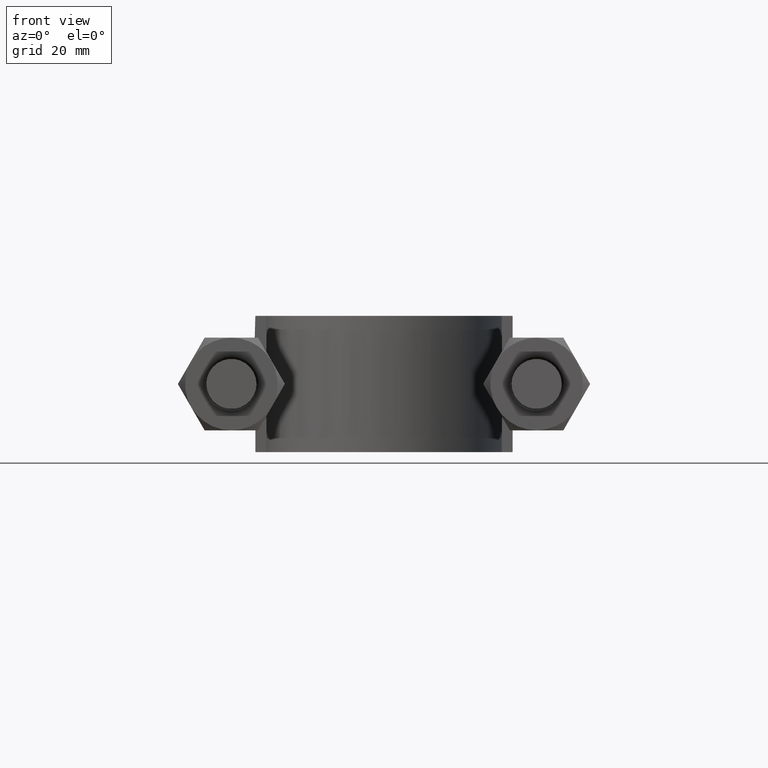
[diagram: clean part render]
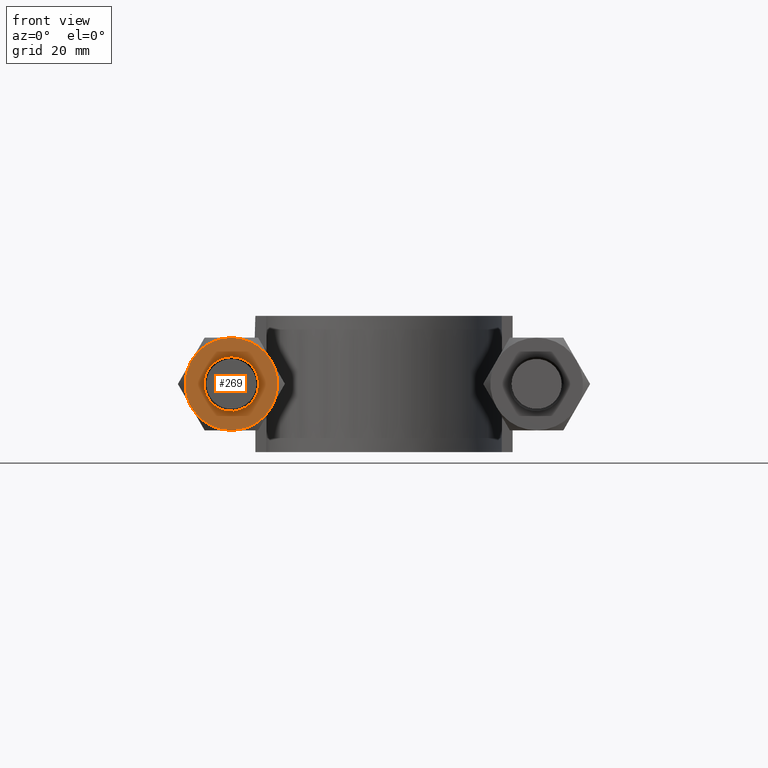
[diagram: same view with one face highlighted and labeled with its STEP entity id]
A machine part, front view. The second image highlights one B-rep face of the part: STEP entity #269.
In plain terms, the highlighted planar face has unit normal (0, 1, 0).
Its self-contained STEP definition (entity closure, byte-faithful):
#269 = ADVANCED_FACE( '', ( #409, #410 ), #411, .F. );
#409 = FACE_OUTER_BOUND( '', #1406, .T. );
#410 = FACE_BOUND( '', #1407, .T. );
#411 = PLANE( '', #1408 );
#1406 = EDGE_LOOP( '', ( #1808, #1809, #1810, #1811, #1812, #1813 ) );
#1407 = EDGE_LOOP( '', ( #1814 ) );
#1408 = AXIS2_PLACEMENT_3D( '', #1815, #1816, #1817 );
#1808 = ORIENTED_EDGE( '', *, *, #2055, .F. );
#1809 = ORIENTED_EDGE( '', *, *, #2059, .F. );
#1810 = ORIENTED_EDGE( '', *, *, #2102, .F. );
#1811 = ORIENTED_EDGE( '', *, *, #2088, .F. );
#1812 = ORIENTED_EDGE( '', *, *, #2053, .F. );
#1813 = ORIENTED_EDGE( '', *, *, #2101, .F. );
#1814 = ORIENTED_EDGE( '', *, *, #2097, .T. );
#1815 = CARTESIAN_POINT( '', ( -28.0000000000000, 20.0000000000000, 6.22440467223928E-016 ) );
#1816 = DIRECTION( '', ( 9.18247024260625E-049, 1.00000000000000, 6.12303176911190E-017 ) );
#1817 = DIRECTION( '', ( 1.00000000000000, 0.000000000000000, -1.49966072182214E-032 ) );
#2053 = EDGE_CURVE( '', #2236, #2238, #2239, .T. );
#2055 = EDGE_CURVE( '', #2241, #2242, #2243, .T. );
#2059 = EDGE_CURVE( '', #2249, #2241, #2250, .T. );
#2088 = EDGE_CURVE( '', #2238, #2292, #2299, .T. );
#2097 = EDGE_CURVE( '', #2312, #2312, #2313, .T. );
#2101 = EDGE_CURVE( '', #2242, #2236, #2317, .T. );
#2102 = EDGE_CURVE( '', #2292, #2249, #2318, .T. );
#2236 = VERTEX_POINT( '', #2729 );
#2238 = VERTEX_POINT( '', #2736 );
#2239 = CIRCLE( '', #2737, 8.50000000000000 );
#2241 = VERTEX_POINT( '', #2744 );
#2242 = VERTEX_POINT( '', #2745 );
#2243 = CIRCLE( '', #2746, 8.50000000000000 );
#2249 = VERTEX_POINT( '', #2762 );
#2250 = CIRCLE( '', #2763, 8.50000000000000 );
#2292 = VERTEX_POINT( '', #2837 );
#2299 = CIRCLE( '', #2856, 8.50000000000000 );
#2312 = VERTEX_POINT( '', #2872 );
#2313 = CIRCLE( '', #2873, 5.00000000000000 );
#2317 = CIRCLE( '', #2888, 8.50000000000000 );
#2318 = CIRCLE( '', #2889, 8.50000000000000 );
#2729 = CARTESIAN_POINT( '', ( -20.6387840678323, 20.0000000000000, -4.25000000000000 ) );
#2736 = CARTESIAN_POINT( '', ( -28.0000000000000, 20.0000000000000, -8.49999999999999 ) );
#2737 = AXIS2_PLACEMENT_3D( '', #3123, #3124, #3125 );
#2744 = CARTESIAN_POINT( '', ( -28.0000000000000, 20.0000000000000, 8.50000000000000 ) );
#2745 = CARTESIAN_POINT( '', ( -20.6387840678323, 20.0000000000000, 4.25000000000000 ) );
#2746 = AXIS2_PLACEMENT_3D( '', #3126, #3127, #3128 );
#2762 = CARTESIAN_POINT( '', ( -35.3612159321677, 20.0000000000000, 4.25000000000000 ) );
#2763 = AXIS2_PLACEMENT_3D( '', #3132, #3133, #3134 );
#2837 = CARTESIAN_POINT( '', ( -35.3612159321677, 20.0000000000000, -4.25000000000001 ) );
#2856 = AXIS2_PLACEMENT_3D( '', #3173, #3174, #3175 );
#2872 = CARTESIAN_POINT( '', ( -28.0000000000000, 20.0000000000000, 5.00000000000000 ) );
#2873 = AXIS2_PLACEMENT_3D( '', #3194, #3195, #3196 );
#2888 = AXIS2_PLACEMENT_3D( '', #3198, #3199, #3200 );
#2889 = AXIS2_PLACEMENT_3D( '', #3201, #3202, #3203 );
#3123 = CARTESIAN_POINT( '', ( -28.0000000000000, 20.0000000000000, 6.22440467223928E-016 ) );
#3124 = DIRECTION( '', ( 9.18247024260625E-049, 1.00000000000000, 6.12303176911190E-017 ) );
#3125 = DIRECTION( '', ( 0.000000000000000, -6.12303176911190E-017, 1.00000000000000 ) );
#3126 = CARTESIAN_POINT( '', ( -28.0000000000000, 20.0000000000000, 6.22440467223928E-016 ) );
#3127 = DIRECTION( '', ( 9.18247024260625E-049, 1.00000000000000, 6.12303176911190E-017 ) );
#3128 = DIRECTION( '', ( 0.000000000000000, -6.12303176911190E-017, 1.00000000000000 ) );
#3132 = CARTESIAN_POINT( '', ( -28.0000000000000, 20.0000000000000, 6.22440467223928E-016 ) );
#3133 = DIRECTION( '', ( 9.18247024260625E-049, 1.00000000000000, 6.12303176911190E-017 ) );
#3134 = DIRECTION( '', ( 0.000000000000000, -6.12303176911190E-017, 1.00000000000000 ) );
#3173 = CARTESIAN_POINT( '', ( -28.0000000000000, 20.0000000000000, 6.22440467223928E-016 ) );
#3174 = DIRECTION( '', ( 9.18247024260625E-049, 1.00000000000000, 6.12303176911190E-017 ) );
#3175 = DIRECTION( '', ( 0.000000000000000, -6.12303176911190E-017, 1.00000000000000 ) );
#3194 = CARTESIAN_POINT( '', ( -28.0000000000000, 20.0000000000000, 6.22440467223928E-016 ) );
#3195 = DIRECTION( '', ( 9.18247024260625E-049, 1.00000000000000, 6.12303176911190E-017 ) );
#3196 = DIRECTION( '', ( 0.000000000000000, -6.12303176911190E-017, 1.00000000000000 ) );
#3198 = CARTESIAN_POINT( '', ( -28.0000000000000, 20.0000000000000, 6.22440467223928E-016 ) );
#3199 = DIRECTION( '', ( 9.18247024260625E-049, 1.00000000000000, 6.12303176911190E-017 ) );
#3200 = DIRECTION( '', ( 0.000000000000000, -6.12303176911190E-017, 1.00000000000000 ) );
#3201 = CARTESIAN_POINT( '', ( -28.0000000000000, 20.0000000000000, 6.22440467223928E-016 ) );
#3202 = DIRECTION( '', ( 9.18247024260625E-049, 1.00000000000000, 6.12303176911190E-017 ) );
#3203 = DIRECTION( '', ( 0.000000000000000, -6.12303176911190E-017, 1.00000000000000 ) );